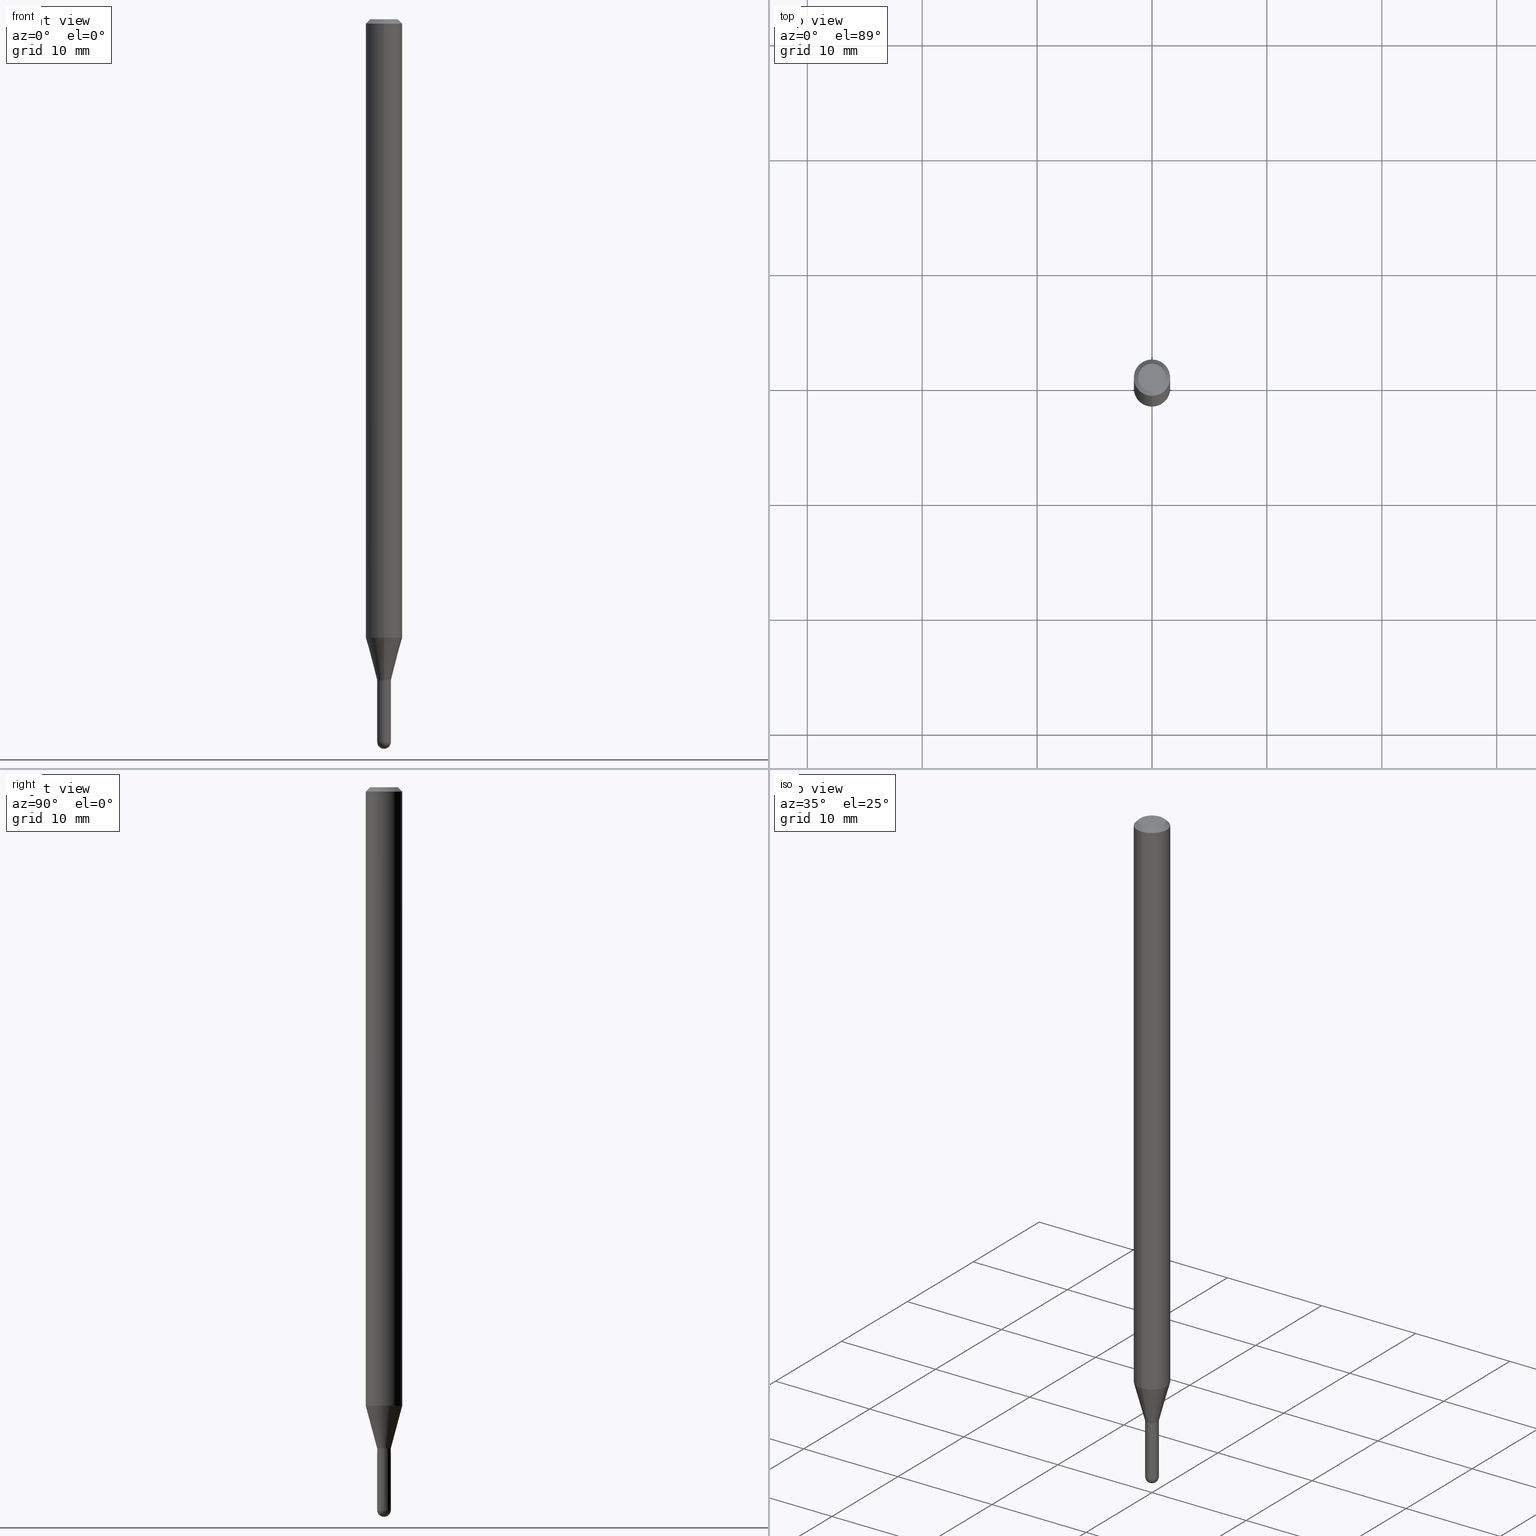
[diagram: canonical four-view strip — front | top / right | iso, engineering-drawing reading convention]
A machine part, canonical four-view strip (front | top / right | iso — engineering-drawing reading convention). The complete STEP part file that produces these views, byte-faithful:
ISO-10303-21;
HEADER;
FILE_DESCRIPTION (( 'STEP AP203' ),
    '1' );
FILE_NAME ('04463.STEP',
    '2024-03-08T19:46:50',
    ( '' ),
    ( '' ),
    'SwSTEP 2.0',
    'SolidWorks 2023',
    '' );
FILE_SCHEMA (( 'CONFIG_CONTROL_DESIGN' ));
ENDSEC;

DATA;
#1 = ORIENTED_EDGE ( 'NONE', *, *, #501, .T. ) ;
#2 = CIRCLE ( 'NONE', #287, 0.02299999999999999961 ) ;
#3 = CIRCLE ( 'NONE', #182, 0.02350000000000000699 ) ;
#4 = CYLINDRICAL_SURFACE ( 'NONE', #506, 0.06250000000000000000 ) ;
#5 = VERTEX_POINT ( 'NONE', #365 ) ;
#6 = DIRECTION ( 'NONE',  ( 6.982962677686265922E-15, 1.000000000000000000, 0.000000000000000000 ) ) ;
#7 = ORIENTED_EDGE ( 'NONE', *, *, #113, .T. ) ;
#8 = EDGE_CURVE ( 'NONE', #510, #41, #323, .T. ) ;
#9 = EDGE_CURVE ( 'NONE', #317, #128, #466, .T. ) ;
#10 = DIRECTION ( 'NONE',  ( -6.982962677686265922E-15, -1.000000000000000000, 0.000000000000000000 ) ) ;
#11 = ORIENTED_EDGE ( 'NONE', *, *, #357, .F. ) ;
#12 = AXIS2_PLACEMENT_3D ( 'NONE', #226, #427, #223 ) ;
#13 = CARTESIAN_POINT ( 'NONE',  ( 6.056203498517492154E-29, -8.646653535645053486E-15, -2.476500000000000590 ) ) ;
#14 = DIRECTION ( 'NONE',  ( -2.445458226452075006E-29, 3.491496489623050583E-15, 1.000000000000000000 ) ) ;
#15 = CARTESIAN_POINT ( 'NONE',  ( 1.669775429036229771E-16, 0.02349999999999992373, -8.205016750614142168E-17 ) ) ;
#16 = CARTESIAN_POINT ( 'NONE',  ( -1.606081415867287287E-16, -0.02300000000000790995, -2.265000000000000124 ) ) ;
#17 = ORIENTED_EDGE ( 'NONE', *, *, #501, .F. ) ;
#18 = AXIS2_PLACEMENT_3D ( 'NONE', #380, #308, #423 ) ;
#19 = PRODUCT_DEFINITION_FORMATION_WITH_SPECIFIED_SOURCE ( 'ANY', '', #215, .NOT_KNOWN. ) ;
#20 = CARTESIAN_POINT ( 'NONE',  ( -4.364351673553912750E-16, -0.06250000000000005551, -0.01499999999999984852 ) ) ;
#21 = EDGE_CURVE ( 'NONE', #399, #393, #216, .T. ) ;
#22 = CARTESIAN_POINT ( 'NONE',  ( 1.634248292248784082E-16, 0.02299999999999208927, -2.265000000000000124 ) ) ;
#23 = CARTESIAN_POINT ( 'NONE',  ( 5.183026483306613636E-29, -7.400052299541085290E-15, -2.119450018504819067 ) ) ;
#24 = CARTESIAN_POINT ( 'NONE',  ( 5.537740153800724885E-29, -7.906493800751397626E-15, -2.264499999999999957 ) ) ;
#25 = CC_DESIGN_PERSON_AND_ORGANIZATION_ASSIGNMENT ( #422, #186, ( #19 ) ) ;
#26 = CONICAL_SURFACE ( 'NONE', #18, 0.02299999999999999961, 0.7853981633969275844 ) ;
#27 = FACE_OUTER_BOUND ( 'NONE', #408, .T. ) ;
#28 = APPROVAL_PERSON_ORGANIZATION ( #107, #298, #31 ) ;
#29 = PERSON_AND_ORGANIZATION ( #460, #175 ) ;
#30 = DIRECTION ( 'NONE',  ( -6.982962677686265133E-15, -1.000000000000000000, 0.000000000000000000 ) ) ;
#31 = APPROVAL_ROLE ( '' ) ;
#32 = LINE ( 'NONE', #465, #59 ) ;
#33 = CARTESIAN_POINT ( 'NONE',  ( 5.538962882913950736E-29, -7.908239548996208593E-15, -2.265000000000000124 ) ) ;
#34 = CONICAL_SURFACE ( 'NONE', #351, 0.06250000000000000000, 0.7853981633974483900 ) ;
#35 = CIRCLE ( 'NONE', #374, 0.02349999999999965311 ) ;
#36 = VECTOR ( 'NONE', #375, 39.37007874015748143 ) ;
#37 = FACE_OUTER_BOUND ( 'NONE', #84, .T. ) ;
#38 = DIRECTION ( 'NONE',  ( -1.807323732225379443E-15, -0.2588190451025252359, 0.9659258262890670910 ) ) ;
#39 = VERTEX_POINT ( 'NONE', #131 ) ;
#40 = DIRECTION ( 'NONE',  ( 2.445458226452074726E-29, -3.491496489623050583E-15, -1.000000000000000000 ) ) ;
#41 = VERTEX_POINT ( 'NONE', #283 ) ;
#42 = VECTOR ( 'NONE', #167, 39.37007874015748143 ) ;
#43 = DIRECTION ( 'NONE',  ( 6.982962677686265922E-15, 1.000000000000000000, -3.491496489623050583E-15 ) ) ;
#44 = EDGE_LOOP ( 'NONE', ( #120, #474, #353, #485 ) ) ;
#45 = CARTESIAN_POINT ( 'NONE',  ( 6.054193857737919554E-29, -8.649531455623046771E-15, -2.476500000000000146 ) ) ;
#46 = ORIENTED_EDGE ( 'NONE', *, *, #453, .F. ) ;
#47 = ORIENTED_EDGE ( 'NONE', *, *, #435, .T. ) ;
#48 = CIRCLE ( 'NONE', #297, 0.06250000000000000000 ) ;
#49 = AXIS2_PLACEMENT_3D ( 'NONE', #55, #210, #213 ) ;
#50 = DIRECTION ( 'NONE',  ( -6.982962677686265133E-15, -1.000000000000000000, 0.000000000000000000 ) ) ;
#51 = CARTESIAN_POINT ( 'NONE',  ( -1.606081415867287287E-16, -0.02300000000000790995, -2.265000000000000124 ) ) ;
#52 = LENGTH_MEASURE_WITH_UNIT ( LENGTH_MEASURE( 0.02539999999999999897 ), #130 );
#53 = DIRECTION ( 'NONE',  ( -2.445458226452075287E-29, 3.491496489623050583E-15, 1.000000000000000000 ) ) ;
#54 = APPLICATION_CONTEXT ( 'configuration controlled 3d designs of mechanical parts and assemblies' ) ;
#55 = CARTESIAN_POINT ( 'NONE',  ( 0.000000000000000000, 0.000000000000000000, 0.000000000000000000 ) ) ;
#56 = CC_DESIGN_PERSON_AND_ORGANIZATION_ASSIGNMENT ( #282, #169, ( #215 ) ) ;
#57 = DIRECTION ( 'NONE',  ( -7.105427357601001070E-15, -1.000000000000000000, 0.000000000000000000 ) ) ;
#58 = VECTOR ( 'NONE', #490, 39.37007874015748143 ) ;
#59 = VECTOR ( 'NONE', #187, 39.37007874015748143 ) ;
#60 = APPROVAL_ROLE ( '' ) ;
#61 = CARTESIAN_POINT ( 'NONE',  ( 6.056203498517492154E-29, -8.646653535645053486E-15, -2.476500000000000590 ) ) ;
#62 = APPROVAL_STATUS ( 'not_yet_approved' ) ;
#63 = DIRECTION ( 'NONE',  ( 2.445458226452075287E-29, -3.491496489623050583E-15, -1.000000000000000000 ) ) ;
#64 = APPROVAL_STATUS ( 'not_yet_approved' ) ;
#65 = DIRECTION ( 'NONE',  ( -2.445458226452075287E-29, 3.491496489623050583E-15, 1.000000000000000000 ) ) ;
#66 = SHAPE_DEFINITION_REPRESENTATION ( #406, #180 ) ;
#67 = CYLINDRICAL_SURFACE ( 'NONE', #181, 0.02349999999999992373 ) ;
#68 = CC_DESIGN_APPROVAL ( #298, ( #104 ) ) ;
#69 = APPROVAL_ROLE ( '' ) ;
#70 = FACE_OUTER_BOUND ( 'NONE', #255, .T. ) ;
#71 = DIRECTION ( 'NONE',  ( -6.982962677686265922E-15, -1.000000000000000000, 0.000000000000000000 ) ) ;
#72 = CARTESIAN_POINT ( 'NONE',  ( 5.538962882913950736E-29, -7.908239548996208593E-15, -2.265000000000000124 ) ) ;
#73 = CIRCLE ( 'NONE', #95, 0.02350000000000000699 ) ;
#74 = EDGE_CURVE ( 'NONE', #471, #356, #246, .T. ) ;
#75 = EDGE_CURVE ( 'NONE', #128, #317, #481, .T. ) ;
#76 = CARTESIAN_POINT ( 'NONE',  ( -1.640996229255732643E-16, -0.02350000000000810815, -2.265000000000000124 ) ) ;
#77 = ORIENTED_EDGE ( 'NONE', *, *, #118, .T. ) ;
#78 = ADVANCED_FACE ( 'NONE', ( #366 ), #34, .T. ) ;
#79 = FACE_OUTER_BOUND ( 'NONE', #160, .T. ) ;
#80 = EDGE_LOOP ( 'NONE', ( #236, #17 ) ) ;
#81 = EDGE_CURVE ( 'NONE', #5, #399, #211, .T. ) ;
#82 = PLANE ( 'NONE',  #247 ) ;
#83 = EDGE_CURVE ( 'NONE', #510, #176, #173, .T. ) ;
#84 = EDGE_LOOP ( 'NONE', ( #411, #47, #94, #419 ) ) ;
#85 = AXIS2_PLACEMENT_3D ( 'NONE', #469, #459, #428 ) ;
#86 = CIRCLE ( 'NONE', #96, 0.02350000000000000352 ) ;
#87 = CC_DESIGN_APPROVAL ( #257, ( #237 ) ) ;
#88 = EDGE_CURVE ( 'NONE', #401, #162, #124, .T. ) ;
#89 = DIRECTION ( 'NONE',  ( -2.445458226452075287E-29, 3.491496489623050583E-15, 1.000000000000000000 ) ) ;
#90 = VERTEX_POINT ( 'NONE', #20 ) ;
#91 = CARTESIAN_POINT ( 'NONE',  ( 5.538962882913951857E-29, -7.908239548996210171E-15, -2.265000000000000124 ) ) ;
#92 = ORIENTED_EDGE ( 'NONE', *, *, #74, .F. ) ;
#93 = LINE ( 'NONE', #172, #126 ) ;
#94 = ORIENTED_EDGE ( 'NONE', *, *, #335, .T. ) ;
#95 = AXIS2_PLACEMENT_3D ( 'NONE', #61, #219, #376 ) ;
#96 = AXIS2_PLACEMENT_3D ( 'NONE', #307, #473, #359 ) ;
#97 = COORDINATED_UNIVERSAL_TIME_OFFSET ( 5, 0, .BEHIND. ) ;
#98 = EDGE_LOOP ( 'NONE', ( #270, #410, #477, #99 ) ) ;
#99 = ORIENTED_EDGE ( 'NONE', *, *, #435, .F. ) ;
#100 = CARTESIAN_POINT ( 'NONE',  ( 6.054193857737919554E-29, -8.649531455623046771E-15, -2.476500000000000146 ) ) ;
#101 = DIRECTION ( 'NONE',  ( -6.982962677686265133E-15, -1.000000000000000000, 0.000000000000000000 ) ) ;
#102 = CONICAL_SURFACE ( 'NONE', #296, 0.02299999999999999961, 0.7853981633969275844 ) ;
#103 = AXIS2_PLACEMENT_3D ( 'NONE', #45, #161, #316 ) ;
#104 = SECURITY_CLASSIFICATION ( '', '', #184 ) ;
#105 = ORIENTED_EDGE ( 'NONE', *, *, #354, .T. ) ;
#106 = DIRECTION ( 'NONE',  ( -2.445458226452075287E-29, 3.491496489623050583E-15, 1.000000000000000000 ) ) ;
#107 = PERSON_AND_ORGANIZATION ( #460, #175 ) ;
#108 = CARTESIAN_POINT ( 'NONE',  ( 3.668187339678129272E-31, -5.237244734434598234E-17, -0.01500000000000006710 ) ) ;
#109 = CALENDAR_DATE ( 2024, 8, 3 ) ;
#110 = DIRECTION ( 'NONE',  ( -2.445458226452075287E-29, 3.491496489623050583E-15, 1.000000000000000000 ) ) ;
#111 = CARTESIAN_POINT ( 'NONE',  ( -4.364351673553916201E-16, -0.06250000000000000000, 2.182185306014406615E-16 ) ) ;
#112 = ADVANCED_FACE ( 'NONE', ( #138 ), #102, .T. ) ;
#113 = EDGE_CURVE ( 'NONE', #5, #212, #73, .T. ) ;
#114 = DIRECTION ( 'NONE',  ( -6.982962677686265922E-15, -1.000000000000000000, 3.491496489623050583E-15 ) ) ;
#115 = AXIS2_PLACEMENT_3D ( 'NONE', #133, #496, #487 ) ;
#116 = VECTOR ( 'NONE', #504, 39.37007874015748143 ) ;
#117 = ORIENTED_EDGE ( 'NONE', *, *, #507, .F. ) ;
#118 = EDGE_CURVE ( 'NONE', #197, #176, #362, .T. ) ;
#119 = DIRECTION ( 'NONE',  ( -6.982962677686265922E-15, -1.000000000000000000, 0.000000000000000000 ) ) ;
#120 = ORIENTED_EDGE ( 'NONE', *, *, #8, .F. ) ;
#121 = DIRECTION ( 'NONE',  ( -1.000000000000000000, 6.982962677686265922E-15, -4.883557194083112901E-29 ) ) ;
#122 = ORIENTED_EDGE ( 'NONE', *, *, #275, .F. ) ;
#123 = CARTESIAN_POINT ( 'NONE',  ( 5.183026483306613636E-29, -7.400052299541085290E-15, -2.119450018504819067 ) ) ;
#124 = CIRCLE ( 'NONE', #318, 0.02349999999999995495 ) ;
#125 = ORIENTED_EDGE ( 'NONE', *, *, #357, .T. ) ;
#126 = VECTOR ( 'NONE', #454, 39.37007874015748143 ) ;
#127 = DIRECTION ( 'NONE',  ( -2.445458226452075287E-29, 3.491496489623050583E-15, 1.000000000000000000 ) ) ;
#128 = VERTEX_POINT ( 'NONE', #148 ) ;
#129 = ADVANCED_FACE ( 'NONE', ( #27 ), #285, .T. ) ;
#130 =( LENGTH_UNIT ( ) NAMED_UNIT ( * ) SI_UNIT ( $, .METRE. ) );
#131 = CARTESIAN_POINT ( 'NONE',  ( -0.02350000000000000699, -8.110451841158766012E-15, -2.476500000000000590 ) ) ;
#132 = PERSON_AND_ORGANIZATION ( #460, #175 ) ;
#133 = CARTESIAN_POINT ( 'NONE',  ( 5.538986846009334661E-29, -7.908205232479725133E-15, -2.265000000000000124 ) ) ;
#134 = EDGE_CURVE ( 'NONE', #41, #356, #337, .T. ) ;
#135 = ORIENTED_EDGE ( 'NONE', *, *, #88, .F. ) ;
#136 =( NAMED_UNIT ( * ) PLANE_ANGLE_UNIT ( ) SI_UNIT ( $, .RADIAN. ) );
#137 = CARTESIAN_POINT ( 'NONE',  ( 0.02350000000000000352, -1.640996229256272766E-16, 1.145901542312045115E-30 ) ) ;
#138 = FACE_OUTER_BOUND ( 'NONE', #416, .T. ) ;
#139 = ADVANCED_FACE ( 'NONE', ( #70 ), #26, .T. ) ;
#140 = ADVANCED_FACE ( 'NONE', ( #301 ), #174, .T. ) ;
#141 = EDGE_LOOP ( 'NONE', ( #497, #438, #289, #193 ) ) ;
#142 = AXIS2_PLACEMENT_3D ( 'NONE', #23, #266, #345 ) ;
#143 = VECTOR ( 'NONE', #238, 39.37007874015748143 ) ;
#144 = CARTESIAN_POINT ( 'NONE',  ( 1.640996229256876491E-16, 0.02349999999999133338, -2.476500000000000590 ) ) ;
#145 = DATE_AND_TIME ( #220, #338 ) ;
#146 = FACE_OUTER_BOUND ( 'NONE', #325, .T. ) ;
#147 = COORDINATED_UNIVERSAL_TIME_OFFSET ( 5, 0, .BEHIND. ) ;
#148 = CARTESIAN_POINT ( 'NONE',  ( -3.773273898774340269E-16, -0.04749999999999999362, 1.003465688667441615E-16 ) ) ;
#149 = EDGE_CURVE ( 'NONE', #212, #39, #371, .T. ) ;
#150 = CARTESIAN_POINT ( 'NONE',  ( -1.640996229255700102E-16, -0.02350000000000763978, -2.264499999999999957 ) ) ;
#151 = APPLICATION_CONTEXT ( 'configuration controlled 3d designs of mechanical parts and assemblies' ) ;
#152 = DIRECTION ( 'NONE',  ( -2.445468806185136597E-29, 3.491481338843145583E-15, 1.000000000000000000 ) ) ;
#153 = DIRECTION ( 'NONE',  ( 1.000000000000000000, -6.982962677686265922E-15, 4.876176775795935793E-29 ) ) ;
#154 = VERTEX_POINT ( 'NONE', #221 ) ;
#155 = MANIFOLD_SOLID_BREP ( 'Body-Move/Copy2[2]', #188 ) ;
#156 = DIRECTION ( 'NONE',  ( -2.445458226452075287E-29, 3.491496489623050583E-15, 1.000000000000000000 ) ) ;
#157 = CIRCLE ( 'NONE', #103, 0.02349999999999995495 ) ;
#158 = EDGE_LOOP ( 'NONE', ( #434, #457 ) ) ;
#159 = CARTESIAN_POINT ( 'NONE',  ( 0.000000000000000000, 0.000000000000000000, 0.000000000000000000 ) ) ;
#160 = EDGE_LOOP ( 'NONE', ( #480, #234, #441, #250, #7 ) ) ;
#161 = DIRECTION ( 'NONE',  ( 1.000000000000000000, -6.982962677686265922E-15, 4.883557194083112340E-29 ) ) ;
#162 = VERTEX_POINT ( 'NONE', #183 ) ;
#163 = MANIFOLD_SOLID_BREP ( 'Body-Move/Copy2[1]', #267 ) ;
#164 = CARTESIAN_POINT ( 'NONE',  ( -0.02350000000000000352, -8.110451841158766012E-15, -2.265000000000000124 ) ) ;
#165 = EDGE_LOOP ( 'NONE', ( #309, #125 ) ) ;
#166 = AXIS2_PLACEMENT_3D ( 'NONE', #437, #355, #153 ) ;
#167 = DIRECTION ( 'NONE',  ( 4.937700262164548042E-15, 0.7071067811865451302, -0.7071067811865499042 ) ) ;
#168 = ORIENTED_EDGE ( 'NONE', *, *, #113, .F. ) ;
#169 = PERSON_AND_ORGANIZATION_ROLE ( 'design_owner' ) ;
#170 = DIRECTION ( 'NONE',  ( 6.982962677686265922E-15, 1.000000000000000000, -3.483106191921935554E-15 ) ) ;
#171 = ORIENTED_EDGE ( 'NONE', *, *, #409, .F. ) ;
#172 = CARTESIAN_POINT ( 'NONE',  ( 4.440892098500625669E-16, 0.06250000000000000000, -2.182185306014406615E-16 ) ) ;
#173 = LINE ( 'NONE', #251, #195 ) ;
#174 = CONICAL_SURFACE ( 'NONE', #396, 0.02350000000000019781, 0.2617993877991575680 ) ;
#175 = ORGANIZATION ( 'UNSPECIFIED', 'UNSPECIFIED', '' ) ;
#176 = VERTEX_POINT ( 'NONE', #185 ) ;
#177 = DIRECTION ( 'NONE',  ( 5.024295867785445738E-15, 0.7071067811861817543, 0.7071067811869132802 ) ) ;
#178 = ORIENTED_EDGE ( 'NONE', *, *, #436, .T. ) ;
#179 = DIRECTION ( 'NONE',  ( 1.000000000000000000, -6.982962677686227268E-15, 0.000000000000000000 ) ) ;
#180 = ADVANCED_BREP_SHAPE_REPRESENTATION ( '04463', ( #163, #155, #49 ), #417 ) ;
#181 = AXIS2_PLACEMENT_3D ( 'NONE', #341, #508, #383 ) ;
#182 = AXIS2_PLACEMENT_3D ( 'NONE', #13, #407, #243 ) ;
#183 = CARTESIAN_POINT ( 'NONE',  ( -1.669775429035628264E-16, -0.02350000000000862857, -2.476500000000000590 ) ) ;
#184 = SECURITY_CLASSIFICATION_LEVEL ( 'unclassified' ) ;
#185 = CARTESIAN_POINT ( 'NONE',  ( 4.440892098501141880E-16, 0.06249999999999258232, -2.119450018504819511 ) ) ;
#186 = PERSON_AND_ORGANIZATION_ROLE ( 'design_supplier' ) ;
#187 = DIRECTION ( 'NONE',  ( -2.445468806185136877E-29, 3.491481338843145188E-15, 1.000000000000000000 ) ) ;
#188 = CLOSED_SHELL ( 'NONE', ( #478, #112, #78, #413, #140, #442, #447, #129, #385, #300, #139, #330 ) ) ;
#189 = CARTESIAN_POINT ( 'NONE',  ( 5.538962882913950736E-29, -7.908239548996208593E-15, -2.265000000000000124 ) ) ;
#190 = EDGE_CURVE ( 'NONE', #154, #90, #48, .T. ) ;
#191 = CARTESIAN_POINT ( 'NONE',  ( 0.000000000000000000, 0.000000000000000000, 0.000000000000000000 ) ) ;
#192 = FACE_OUTER_BOUND ( 'NONE', #203, .T. ) ;
#193 = ORIENTED_EDGE ( 'NONE', *, *, #511, .F. ) ;
#194 = CARTESIAN_POINT ( 'NONE',  ( 6.112667195073056873E-29, -8.730142307096863163E-15, -2.500000000000000000 ) ) ;
#195 = VECTOR ( 'NONE', #291, 39.37007874015748854 ) ;
#196 = AXIS2_PLACEMENT_3D ( 'NONE', #390, #156, #119 ) ;
#197 = VERTEX_POINT ( 'NONE', #500 ) ;
#198 = CC_DESIGN_APPROVAL ( #358, ( #19 ) ) ;
#199 = CARTESIAN_POINT ( 'NONE',  ( 6.054193857737919554E-29, -8.649531455623046771E-15, -2.476500000000000146 ) ) ;
#200 = DIMENSIONAL_EXPONENTS ( 1.000000000000000000, 0.000000000000000000, 0.000000000000000000, 0.000000000000000000, 0.000000000000000000, 0.000000000000000000, 0.000000000000000000 ) ;
#201 = EDGE_LOOP ( 'NONE', ( #326, #450, #432, #46 ) ) ;
#202 = CARTESIAN_POINT ( 'NONE',  ( 5.538962882913951857E-29, -7.908239548996210171E-15, -2.265000000000000124 ) ) ;
#203 = EDGE_LOOP ( 'NONE', ( #446, #395, #449, #360, #11 ) ) ;
#204 = FACE_OUTER_BOUND ( 'NONE', #141, .T. ) ;
#205 = DIRECTION ( 'NONE',  ( -6.982962677686266711E-15, -1.000000000000000000, 3.491496489623050978E-15 ) ) ;
#206 = CIRCLE ( 'NONE', #239, 0.02350000000000000699 ) ;
#207 = CARTESIAN_POINT ( 'NONE',  ( 3.055333763768974376E-16, 0.02349999999999228401, -2.265000000000000124 ) ) ;
#208 = CARTESIAN_POINT ( 'NONE',  ( 1.601763262944992789E-45, -2.286913245659240307E-31, -6.549951439035072098E-17 ) ) ;
#209 = ORIENTED_EDGE ( 'NONE', *, *, #461, .T. ) ;
#210 = DIRECTION ( 'NONE',  ( 0.000000000000000000, 0.000000000000000000, 1.000000000000000000 ) ) ;
#211 = LINE ( 'NONE', #137, #424 ) ;
#212 = VERTEX_POINT ( 'NONE', #144 ) ;
#213 = DIRECTION ( 'NONE',  ( 1.000000000000000000, 0.000000000000000000, 0.000000000000000000 ) ) ;
#214 = CARTESIAN_POINT ( 'NONE',  ( 3.668187339678129272E-31, -5.237244734434598234E-17, -0.01500000000000006710 ) ) ;
#215 = PRODUCT ( '04463', '04463', '', ( #489 ) ) ;
#216 = CIRCLE ( 'NONE', #115, 0.02350000000000000352 ) ;
#217 = AXIS2_PLACEMENT_3D ( 'NONE', #394, #40, #43 ) ;
#218 = DATE_AND_TIME ( #368, #448 ) ;
#219 = DIRECTION ( 'NONE',  ( -2.445468806185136597E-29, 3.491481338843145583E-15, 1.000000000000000000 ) ) ;
#220 = CALENDAR_DATE ( 2024, 8, 3 ) ;
#221 = CARTESIAN_POINT ( 'NONE',  ( 4.440892098501147796E-16, 0.06249999999999995837, -0.01500000000000028394 ) ) ;
#222 = DATE_AND_TIME ( #382, #306 ) ;
#223 = DIRECTION ( 'NONE',  ( -6.982962677686265133E-15, -1.000000000000000000, 0.000000000000000000 ) ) ;
#224 = VECTOR ( 'NONE', #14, 39.37007874015748143 ) ;
#225 = PRODUCT_RELATED_PRODUCT_CATEGORY ( 'detail', '', ( #215 ) ) ;
#226 = CARTESIAN_POINT ( 'NONE',  ( 5.537740153800724885E-29, -7.906493800751397626E-15, -2.264499999999999957 ) ) ;
#227 = APPROVAL_DATE_TIME ( #218, #257 ) ;
#228 = FACE_OUTER_BOUND ( 'NONE', #80, .T. ) ;
#229 = CARTESIAN_POINT ( 'NONE',  ( 3.840629472727447874E-16, 0.04749999999999999362, -2.313455976474456035E-16 ) ) ;
#230 = CC_DESIGN_PERSON_AND_ORGANIZATION_ASSIGNMENT ( #294, #261, ( #237 ) ) ;
#231 = AXIS2_PLACEMENT_3D ( 'NONE', #72, #89, #10 ) ;
#232 = DIRECTION ( 'NONE',  ( 2.438088387897960049E-29, -3.491481338843145188E-15, -1.000000000000000000 ) ) ;
#233 = LINE ( 'NONE', #392, #493 ) ;
#234 = ORIENTED_EDGE ( 'NONE', *, *, #346, .T. ) ;
#235 = DIRECTION ( 'NONE',  ( -1.000000000000000000, 6.982962677686265922E-15, -4.876176775795935793E-29 ) ) ;
#236 = ORIENTED_EDGE ( 'NONE', *, *, #436, .F. ) ;
#237 = PRODUCT_DEFINITION ( 'UNKNOWN', '', #19, #402 ) ;
#238 = DIRECTION ( 'NONE',  ( -4.851104656540964275E-15, -0.7071067811865500152, -0.7071067811865450192 ) ) ;
#239 = AXIS2_PLACEMENT_3D ( 'NONE', #443, #445, #290 ) ;
#240 = ORIENTED_EDGE ( 'NONE', *, *, #190, .T. ) ;
#241 = LINE ( 'NONE', #440, #143 ) ;
#242 = ORIENTED_EDGE ( 'NONE', *, *, #409, .T. ) ;
#243 = DIRECTION ( 'NONE',  ( 1.000000000000000000, -6.982962677686227268E-15, 0.000000000000000000 ) ) ;
#244 = ORIENTED_EDGE ( 'NONE', *, *, #476, .T. ) ;
#245 = DIRECTION ( 'NONE',  ( -2.445458226452075287E-29, 3.491496489623050583E-15, 1.000000000000000000 ) ) ;
#246 = LINE ( 'NONE', #51, #58 ) ;
#247 = AXIS2_PLACEMENT_3D ( 'NONE', #479, #232, #235 ) ;
#248 = LOCAL_TIME ( 14, 46, 50.00000000000000000, #458 ) ;
#249 =( NAMED_UNIT ( * ) SI_UNIT ( $, .STERADIAN. ) SOLID_ANGLE_UNIT ( ) );
#250 = ORIENTED_EDGE ( 'NONE', *, *, #81, .F. ) ;
#251 = CARTESIAN_POINT ( 'NONE',  ( 1.669775429036802928E-16, 0.02349999999999228747, -2.265000000000000124 ) ) ;
#252 = APPROVAL_STATUS ( 'not_yet_approved' ) ;
#253 = EDGE_LOOP ( 'NONE', ( #135, #348, #168, #278 ) ) ;
#254 = DATE_TIME_ROLE ( 'classification_date' ) ;
#255 = EDGE_LOOP ( 'NONE', ( #444, #1, #295, #404 ) ) ;
#256 = CARTESIAN_POINT ( 'NONE',  ( 1.652011860642771318E-16, 0.02299999999999209621, -2.265000000000000124 ) ) ;
#257 = APPROVAL ( #252, 'UNSPECIFIED' ) ;
#258 = PERSON_AND_ORGANIZATION ( #460, #175 ) ;
#259 = DIRECTION ( 'NONE',  ( -1.000000000000000000, 6.982962677686265922E-15, -4.883557194083112901E-29 ) ) ;
#260 = CIRCLE ( 'NONE', #320, 0.06250000000000000000 ) ;
#261 = PERSON_AND_ORGANIZATION_ROLE ( 'creator' ) ;
#262 = EDGE_CURVE ( 'NONE', #452, #510, #389, .T. ) ;
#263 = CARTESIAN_POINT ( 'NONE',  ( 3.668187339678129272E-31, -5.237244734434598234E-17, -0.01500000000000006710 ) ) ;
#264 = CC_DESIGN_PERSON_AND_ORGANIZATION_ASSIGNMENT ( #378, #498, ( #104 ) ) ;
#265 = SPHERICAL_SURFACE ( 'NONE', #482, 0.02349999999999995495 ) ;
#266 = DIRECTION ( 'NONE',  ( -2.445458226452075287E-29, 3.491496489623050583E-15, 1.000000000000000000 ) ) ;
#267 = CLOSED_SHELL ( 'NONE', ( #397, #279, #377, #403, #387 ) ) ;
#268 = AXIS2_PLACEMENT_3D ( 'NONE', #91, #486, #50 ) ;
#269 = CYLINDRICAL_SURFACE ( 'NONE', #430, 0.06250000000000000000 ) ;
#270 = ORIENTED_EDGE ( 'NONE', *, *, #83, .F. ) ;
#271 = DIRECTION ( 'NONE',  ( -2.445458226452075287E-29, 3.491496489623050583E-15, 1.000000000000000000 ) ) ;
#272 = ORIENTED_EDGE ( 'NONE', *, *, #463, .T. ) ;
#273 = FACE_OUTER_BOUND ( 'NONE', #158, .T. ) ;
#274 = ORIENTED_EDGE ( 'NONE', *, *, #354, .F. ) ;
#275 = EDGE_CURVE ( 'NONE', #356, #41, #35, .T. ) ;
#276 = CYLINDRICAL_SURFACE ( 'NONE', #166, 0.02350000000000000352 ) ;
#277 = APPROVAL_PERSON_ORGANIZATION ( #258, #358, #69 ) ;
#278 = ORIENTED_EDGE ( 'NONE', *, *, #488, .F. ) ;
#279 = ADVANCED_FACE ( 'NONE', ( #146 ), #265, .T. ) ;
#280 = APPLICATION_PROTOCOL_DEFINITION ( 'international standard', 'config_control_design', 1994, #54 ) ;
#281 = EDGE_LOOP ( 'NONE', ( #293, #242, #105, #333 ) ) ;
#282 = PERSON_AND_ORGANIZATION ( #460, #175 ) ;
#283 = CARTESIAN_POINT ( 'NONE',  ( 1.669775429036758554E-16, 0.02349999999999166644, -2.264499999999999957 ) ) ;
#284 = UNCERTAINTY_MEASURE_WITH_UNIT (LENGTH_MEASURE( 1.000000000000000082E-05 ), #327, 'distance_accuracy_value', 'NONE');
#285 = CONICAL_SURFACE ( 'NONE', #491, 0.06250000000000000000, 0.7853981633974483900 ) ;
#286 = DIRECTION ( 'NONE',  ( -6.982962677686266711E-15, -1.000000000000000000, 3.491496489623050978E-15 ) ) ;
#287 = AXIS2_PLACEMENT_3D ( 'NONE', #202, #319, #484 ) ;
#288 = LOCAL_TIME ( 14, 46, 50.00000000000000000, #147 ) ;
#289 = ORIENTED_EDGE ( 'NONE', *, *, #134, .T. ) ;
#290 = DIRECTION ( 'NONE',  ( 1.000000000000000000, -6.982962677686227268E-15, 0.000000000000000000 ) ) ;
#291 = DIRECTION ( 'NONE',  ( 1.839019923739650408E-15, 0.2588190451025319527, 0.9659258262890650926 ) ) ;
#292 = APPLICATION_PROTOCOL_DEFINITION ( 'international standard', 'config_control_design', 1994, #151 ) ;
#293 = ORIENTED_EDGE ( 'NONE', *, *, #75, .F. ) ;
#294 = PERSON_AND_ORGANIZATION ( #460, #175 ) ;
#295 = ORIENTED_EDGE ( 'NONE', *, *, #74, .T. ) ;
#296 = AXIS2_PLACEMENT_3D ( 'NONE', #332, #455, #101 ) ;
#297 = AXIS2_PLACEMENT_3D ( 'NONE', #303, #65, #502 ) ;
#298 = APPROVAL ( #62, 'UNSPECIFIED' ) ;
#299 = PLANE ( 'NONE',  #85 ) ;
#300 = ADVANCED_FACE ( 'NONE', ( #228 ), #299, .F. ) ;
#301 = FACE_OUTER_BOUND ( 'NONE', #201, .T. ) ;
#302 = COORDINATED_UNIVERSAL_TIME_OFFSET ( 5, 0, .BEHIND. ) ;
#303 = CARTESIAN_POINT ( 'NONE',  ( 3.668187339678129272E-31, -5.237244734434598234E-17, -0.01500000000000006710 ) ) ;
#304 = CIRCLE ( 'NONE', #425, 0.06250000000000000000 ) ;
#305 = APPROVAL_DATE_TIME ( #456, #358 ) ;
#306 = LOCAL_TIME ( 14, 46, 50.00000000000000000, #302 ) ;
#307 = CARTESIAN_POINT ( 'NONE',  ( 5.538986846009334661E-29, -7.908205232479725133E-15, -2.265000000000000124 ) ) ;
#308 = DIRECTION ( 'NONE',  ( -2.445458226452075287E-29, 3.491496489623050583E-15, 1.000000000000000000 ) ) ;
#309 = ORIENTED_EDGE ( 'NONE', *, *, #21, .T. ) ;
#310 = AXIS2_PLACEMENT_3D ( 'NONE', #189, #379, #339 ) ;
#311 = APPROVAL_PERSON_ORGANIZATION ( #132, #257, #60 ) ;
#312 = DIRECTION ( 'NONE',  ( -6.982962677686265922E-15, -1.000000000000000000, 4.370956789862821150E-15 ) ) ;
#313 = ORIENTED_EDGE ( 'NONE', *, *, #149, .F. ) ;
#314 = FACE_OUTER_BOUND ( 'NONE', #253, .T. ) ;
#315 = ORIENTED_EDGE ( 'NONE', *, *, #420, .F. ) ;
#316 = DIRECTION ( 'NONE',  ( 6.982962677686265922E-15, 1.000000000000000000, 0.000000000000000000 ) ) ;
#317 = VERTEX_POINT ( 'NONE', #229 ) ;
#318 = AXIS2_PLACEMENT_3D ( 'NONE', #100, #412, #57 ) ;
#319 = DIRECTION ( 'NONE',  ( -2.445458226452075287E-29, 3.491496489623050583E-15, 1.000000000000000000 ) ) ;
#320 = AXIS2_PLACEMENT_3D ( 'NONE', #108, #386, #505 ) ;
#321 = VERTEX_POINT ( 'NONE', #256 ) ;
#322 = CARTESIAN_POINT ( 'NONE',  ( 0.000000000000000000, 0.000000000000000000, 0.000000000000000000 ) ) ;
#323 = LINE ( 'NONE', #15, #224 ) ;
#324 = LINE ( 'NONE', #451, #42 ) ;
#325 = EDGE_LOOP ( 'NONE', ( #315, #405, #117, #313 ) ) ;
#326 = ORIENTED_EDGE ( 'NONE', *, *, #262, .T. ) ;
#327 =( CONVERSION_BASED_UNIT ( 'INCH', #52 ) LENGTH_UNIT ( ) NAMED_UNIT ( #200 ) );
#328 = CARTESIAN_POINT ( 'NONE',  ( 1.601763262944992789E-45, -2.286913245659240307E-31, -6.549951439035072098E-17 ) ) ;
#329 = CIRCLE ( 'NONE', #268, 0.02299999999999999961 ) ;
#330 = ADVANCED_FACE ( 'NONE', ( #388 ), #67, .F. ) ;
#331 = CARTESIAN_POINT ( 'NONE',  ( -1.640996229256267342E-16, -0.02349999999999992373, 8.205016750614142168E-17 ) ) ;
#332 = CARTESIAN_POINT ( 'NONE',  ( 5.538962882913951857E-29, -7.908239548996210171E-15, -2.265000000000000124 ) ) ;
#333 = ORIENTED_EDGE ( 'NONE', *, *, #463, .F. ) ;
#334 = DATE_TIME_ROLE ( 'creation_date' ) ;
#335 = EDGE_CURVE ( 'NONE', #197, #90, #340, .T. ) ;
#336 = CARTESIAN_POINT ( 'NONE',  ( 6.056203498517492154E-29, -8.646653535645053486E-15, -2.476500000000000590 ) ) ;
#337 = CIRCLE ( 'NONE', #12, 0.02349999999999965311 ) ;
#338 = LOCAL_TIME ( 14, 46, 50.00000000000000000, #384 ) ;
#339 = DIRECTION ( 'NONE',  ( -6.982962677686265922E-15, -1.000000000000000000, 0.000000000000000000 ) ) ;
#340 = LINE ( 'NONE', #111, #116 ) ;
#341 = CARTESIAN_POINT ( 'NONE',  ( 0.000000000000000000, 0.000000000000000000, 0.000000000000000000 ) ) ;
#342 = CC_DESIGN_PERSON_AND_ORGANIZATION_ASSIGNMENT ( #29, #418, ( #19 ) ) ;
#343 = AXIS2_PLACEMENT_3D ( 'NONE', #208, #53, #286 ) ;
#344 = CONICAL_SURFACE ( 'NONE', #196, 0.02350000000000019781, 0.2617993877991575680 ) ;
#345 = DIRECTION ( 'NONE',  ( -6.982962677686265922E-15, -1.000000000000000000, 4.370956789862821150E-15 ) ) ;
#346 = EDGE_CURVE ( 'NONE', #39, #393, #32, .T. ) ;
#347 = DIRECTION ( 'NONE',  ( -2.445468806185136597E-29, 3.491481338843145583E-15, 1.000000000000000000 ) ) ;
#348 = ORIENTED_EDGE ( 'NONE', *, *, #420, .T. ) ;
#349 = CYLINDRICAL_SURFACE ( 'NONE', #381, 0.02350000000000000352 ) ;
#350 = ORIENTED_EDGE ( 'NONE', *, *, #335, .F. ) ;
#351 = AXIS2_PLACEMENT_3D ( 'NONE', #214, #372, #170 ) ;
#352 = SPHERICAL_SURFACE ( 'NONE', #364, 0.02349999999999995495 ) ;
#353 = ORIENTED_EDGE ( 'NONE', *, *, #511, .T. ) ;
#354 = EDGE_CURVE ( 'NONE', #90, #154, #260, .T. ) ;
#355 = DIRECTION ( 'NONE',  ( -2.445468806185136597E-29, 3.491481338843145583E-15, 1.000000000000000000 ) ) ;
#356 = VERTEX_POINT ( 'NONE', #150 ) ;
#357 = EDGE_CURVE ( 'NONE', #393, #399, #86, .T. ) ;
#358 = APPROVAL ( #64, 'UNSPECIFIED' ) ;
#359 = DIRECTION ( 'NONE',  ( 1.000000000000000000, -6.982962677686269866E-15, 0.000000000000000000 ) ) ;
#360 = ORIENTED_EDGE ( 'NONE', *, *, #81, .T. ) ;
#361 = ORIENTED_EDGE ( 'NONE', *, *, #9, .F. ) ;
#362 = CIRCLE ( 'NONE', #142, 0.06250000000000000000 ) ;
#363 = DIRECTION ( 'NONE',  ( -6.982962677686266711E-15, -1.000000000000000000, 3.491496489623050583E-15 ) ) ;
#364 = AXIS2_PLACEMENT_3D ( 'NONE', #199, #121, #6 ) ;
#365 = CARTESIAN_POINT ( 'NONE',  ( 0.02350000000000000699, -8.441529006988016167E-15, -2.476500000000000590 ) ) ;
#366 = FACE_OUTER_BOUND ( 'NONE', #281, .T. ) ;
#367 = EDGE_LOOP ( 'NONE', ( #77, #244, #274, #350 ) ) ;
#368 = CALENDAR_DATE ( 2024, 8, 3 ) ;
#369 = DIRECTION ( 'NONE',  ( -2.445468806185136877E-29, 3.491481338843145188E-15, 1.000000000000000000 ) ) ;
#370 = AXIS2_PLACEMENT_3D ( 'NONE', #328, #494, #205 ) ;
#371 = CIRCLE ( 'NONE', #472, 0.02350000000000000699 ) ;
#372 = DIRECTION ( 'NONE',  ( 2.445458226452075287E-29, -3.491496489623050583E-15, -1.000000000000000000 ) ) ;
#373 = EDGE_CURVE ( 'NONE', #510, #452, #439, .T. ) ;
#374 = AXIS2_PLACEMENT_3D ( 'NONE', #24, #106, #30 ) ;
#375 = DIRECTION ( 'NONE',  ( -2.445458226452075006E-29, 3.491496489623050583E-15, 1.000000000000000000 ) ) ;
#376 = DIRECTION ( 'NONE',  ( 1.000000000000000000, -6.982962677686227268E-15, 0.000000000000000000 ) ) ;
#377 = ADVANCED_FACE ( 'NONE', ( #398 ), #82, .F. ) ;
#378 = PERSON_AND_ORGANIZATION ( #460, #175 ) ;
#379 = DIRECTION ( 'NONE',  ( -2.445458226452075287E-29, 3.491496489623050583E-15, 1.000000000000000000 ) ) ;
#380 = CARTESIAN_POINT ( 'NONE',  ( 5.538962882913951857E-29, -7.908239548996210171E-15, -2.265000000000000124 ) ) ;
#381 = AXIS2_PLACEMENT_3D ( 'NONE', #512, #347, #509 ) ;
#382 = CALENDAR_DATE ( 2024, 8, 3 ) ;
#383 = DIRECTION ( 'NONE',  ( -6.982962677686266711E-15, -1.000000000000000000, 3.491496489623050583E-15 ) ) ;
#384 = COORDINATED_UNIVERSAL_TIME_OFFSET ( 5, 0, .BEHIND. ) ;
#385 = ADVANCED_FACE ( 'NONE', ( #273 ), #433, .F. ) ;
#386 = DIRECTION ( 'NONE',  ( -2.445458226452075287E-29, 3.491496489623050583E-15, 1.000000000000000000 ) ) ;
#387 = ADVANCED_FACE ( 'NONE', ( #192 ), #349, .T. ) ;
#388 = FACE_OUTER_BOUND ( 'NONE', #44, .T. ) ;
#389 = CIRCLE ( 'NONE', #310, 0.02350000000000019781 ) ;
#390 = CARTESIAN_POINT ( 'NONE',  ( 5.538962882913950736E-29, -7.908239548996208593E-15, -2.265000000000000124 ) ) ;
#391 = CC_DESIGN_DATE_AND_TIME_ASSIGNMENT ( #145, #254, ( #104 ) ) ;
#392 = CARTESIAN_POINT ( 'NONE',  ( -1.640996229255732643E-16, -0.02350000000000810815, -2.265000000000000124 ) ) ;
#393 = VERTEX_POINT ( 'NONE', #164 ) ;
#394 = CARTESIAN_POINT ( 'NONE',  ( 3.316907271900976096E-16, 0.04749999999999999362, -1.985958404522702491E-16 ) ) ;
#395 = ORIENTED_EDGE ( 'NONE', *, *, #507, .T. ) ;
#396 = AXIS2_PLACEMENT_3D ( 'NONE', #33, #110, #71 ) ;
#397 = ADVANCED_FACE ( 'NONE', ( #79 ), #276, .T. ) ;
#398 = FACE_OUTER_BOUND ( 'NONE', #165, .T. ) ;
#399 = VERTEX_POINT ( 'NONE', #470 ) ;
#400 = FACE_OUTER_BOUND ( 'NONE', #367, .T. ) ;
#401 = VERTEX_POINT ( 'NONE', #194 ) ;
#402 = DESIGN_CONTEXT ( 'detailed design', #151, 'design' ) ;
#403 = ADVANCED_FACE ( 'NONE', ( #314 ), #352, .T. ) ;
#404 = ORIENTED_EDGE ( 'NONE', *, *, #134, .F. ) ;
#405 = ORIENTED_EDGE ( 'NONE', *, *, #88, .T. ) ;
#406 = PRODUCT_DEFINITION_SHAPE ( 'NONE', 'NONE',  #237 ) ;
#407 = DIRECTION ( 'NONE',  ( -2.445468806185136597E-29, 3.491481338843145583E-15, 1.000000000000000000 ) ) ;
#408 = EDGE_LOOP ( 'NONE', ( #171, #361, #272, #240 ) ) ;
#409 = EDGE_CURVE ( 'NONE', #128, #90, #241, .T. ) ;
#410 = ORIENTED_EDGE ( 'NONE', *, *, #373, .T. ) ;
#411 = ORIENTED_EDGE ( 'NONE', *, *, #476, .F. ) ;
#412 = DIRECTION ( 'NONE',  ( -1.000000000000000000, 7.105427357601001070E-15, -4.926315508542082329E-29 ) ) ;
#413 = ADVANCED_FACE ( 'NONE', ( #400 ), #4, .T. ) ;
#414 = LINE ( 'NONE', #331, #36 ) ;
#415 = CC_DESIGN_DATE_AND_TIME_ASSIGNMENT ( #503, #334, ( #237 ) ) ;
#416 = EDGE_LOOP ( 'NONE', ( #178, #209, #122, #92 ) ) ;
#417 =( GEOMETRIC_REPRESENTATION_CONTEXT ( 3 ) GLOBAL_UNCERTAINTY_ASSIGNED_CONTEXT ( ( #284 ) ) GLOBAL_UNIT_ASSIGNED_CONTEXT ( ( #327, #136, #249 ) ) REPRESENTATION_CONTEXT ( 'NONE', 'WORKASPACE' ) );
#418 = PERSON_AND_ORGANIZATION_ROLE ( 'creator' ) ;
#419 = ORIENTED_EDGE ( 'NONE', *, *, #190, .F. ) ;
#420 = EDGE_CURVE ( 'NONE', #401, #212, #157, .T. ) ;
#421 = CARTESIAN_POINT ( 'NONE',  ( 6.054193857737919554E-29, -8.649531455623046771E-15, -2.476500000000000146 ) ) ;
#422 = PERSON_AND_ORGANIZATION ( #460, #175 ) ;
#423 = DIRECTION ( 'NONE',  ( -6.982962677686265133E-15, -1.000000000000000000, 0.000000000000000000 ) ) ;
#424 = VECTOR ( 'NONE', #369, 39.37007874015748143 ) ;
#425 = AXIS2_PLACEMENT_3D ( 'NONE', #123, #127, #312 ) ;
#426 = CALENDAR_DATE ( 2024, 8, 3 ) ;
#427 = DIRECTION ( 'NONE',  ( -2.445458226452075287E-29, 3.491496489623050583E-15, 1.000000000000000000 ) ) ;
#428 = DIRECTION ( 'NONE',  ( -6.982962677686265922E-15, -1.000000000000000000, 3.491496489623050583E-15 ) ) ;
#429 = FACE_OUTER_BOUND ( 'NONE', #98, .T. ) ;
#430 = AXIS2_PLACEMENT_3D ( 'NONE', #191, #271, #431 ) ;
#431 = DIRECTION ( 'NONE',  ( -6.982962677686265922E-15, -1.000000000000000000, 3.491496489623050583E-15 ) ) ;
#432 = ORIENTED_EDGE ( 'NONE', *, *, #118, .F. ) ;
#433 = PLANE ( 'NONE',  #217 ) ;
#434 = ORIENTED_EDGE ( 'NONE', *, *, #9, .T. ) ;
#435 = EDGE_CURVE ( 'NONE', #176, #197, #304, .T. ) ;
#436 = EDGE_CURVE ( 'NONE', #471, #321, #2, .T. ) ;
#437 = CARTESIAN_POINT ( 'NONE',  ( 0.000000000000000000, 0.000000000000000000, 0.000000000000000000 ) ) ;
#438 = ORIENTED_EDGE ( 'NONE', *, *, #8, .T. ) ;
#439 = CIRCLE ( 'NONE', #231, 0.02350000000000019781 ) ;
#440 = CARTESIAN_POINT ( 'NONE',  ( -4.287811248607203282E-16, -0.06250000000000005551, -0.01499999999999984852 ) ) ;
#441 = ORIENTED_EDGE ( 'NONE', *, *, #21, .F. ) ;
#442 = ADVANCED_FACE ( 'NONE', ( #429 ), #344, .T. ) ;
#443 = CARTESIAN_POINT ( 'NONE',  ( 6.056203498517492154E-29, -8.646653535645053486E-15, -2.476500000000000590 ) ) ;
#444 = ORIENTED_EDGE ( 'NONE', *, *, #461, .F. ) ;
#445 = DIRECTION ( 'NONE',  ( -2.445468806185136597E-29, 3.491481338843145583E-15, 1.000000000000000000 ) ) ;
#446 = ORIENTED_EDGE ( 'NONE', *, *, #346, .F. ) ;
#447 = ADVANCED_FACE ( 'NONE', ( #37 ), #269, .T. ) ;
#448 = LOCAL_TIME ( 14, 46, 50.00000000000000000, #97 ) ;
#449 = ORIENTED_EDGE ( 'NONE', *, *, #488, .T. ) ;
#450 = ORIENTED_EDGE ( 'NONE', *, *, #83, .T. ) ;
#451 = CARTESIAN_POINT ( 'NONE',  ( 4.364351673553919652E-16, 0.06249999999999995143, -0.01500000000000028394 ) ) ;
#452 = VERTEX_POINT ( 'NONE', #76 ) ;
#453 = EDGE_CURVE ( 'NONE', #452, #197, #233, .T. ) ;
#454 = DIRECTION ( 'NONE',  ( -2.445458226452075006E-29, 3.491496489623050583E-15, 1.000000000000000000 ) ) ;
#455 = DIRECTION ( 'NONE',  ( -2.445458226452075287E-29, 3.491496489623050583E-15, 1.000000000000000000 ) ) ;
#456 = DATE_AND_TIME ( #426, #248 ) ;
#457 = ORIENTED_EDGE ( 'NONE', *, *, #75, .T. ) ;
#458 = COORDINATED_UNIVERSAL_TIME_OFFSET ( 5, 0, .BEHIND. ) ;
#459 = DIRECTION ( 'NONE',  ( -2.445458226452074726E-29, 3.491496489623050583E-15, 1.000000000000000000 ) ) ;
#460 = PERSON ( 'UNSPECIFIED', 'UNSPECIFIED', 'UNSPECIFIED', ('UNSPECIFIED'), ('UNSPECIFIED'), ('UNSPECIFIED') ) ;
#461 = EDGE_CURVE ( 'NONE', #321, #41, #492, .T. ) ;
#462 = DIRECTION ( 'NONE',  ( 6.982962677686265922E-15, 1.000000000000000000, -3.483106191921935554E-15 ) ) ;
#463 = EDGE_CURVE ( 'NONE', #317, #154, #324, .T. ) ;
#464 = APPROVAL_DATE_TIME ( #222, #298 ) ;
#465 = CARTESIAN_POINT ( 'NONE',  ( -0.02350000000000000352, 1.669775429036235687E-16, -1.155949746209903035E-30 ) ) ;
#466 = CIRCLE ( 'NONE', #370, 0.04749999999999999362 ) ;
#467 = VECTOR ( 'NONE', #177, 39.37007874015748143 ) ;
#468 = DIRECTION ( 'NONE',  ( 6.982962677686265922E-15, 1.000000000000000000, 0.000000000000000000 ) ) ;
#469 = CARTESIAN_POINT ( 'NONE',  ( 5.538962882913950736E-29, -7.908239548996208593E-15, -2.265000000000000124 ) ) ;
#470 = CARTESIAN_POINT ( 'NONE',  ( 0.02350000000000000352, -8.072304855405352780E-15, -2.265000000000000124 ) ) ;
#471 = VERTEX_POINT ( 'NONE', #16 ) ;
#472 = AXIS2_PLACEMENT_3D ( 'NONE', #336, #152, #179 ) ;
#473 = DIRECTION ( 'NONE',  ( -2.445468806185136597E-29, 3.491481338843145583E-15, 1.000000000000000000 ) ) ;
#474 = ORIENTED_EDGE ( 'NONE', *, *, #262, .F. ) ;
#475 = DIRECTION ( 'NONE',  ( -2.445458226452075287E-29, 3.491496489623050583E-15, 1.000000000000000000 ) ) ;
#476 = EDGE_CURVE ( 'NONE', #176, #154, #93, .T. ) ;
#477 = ORIENTED_EDGE ( 'NONE', *, *, #453, .T. ) ;
#478 = ADVANCED_FACE ( 'NONE', ( #204 ), #495, .F. ) ;
#479 = CARTESIAN_POINT ( 'NONE',  ( 1.640996229256826447E-16, 0.02349999999999209319, -2.265000000000000124 ) ) ;
#480 = ORIENTED_EDGE ( 'NONE', *, *, #149, .T. ) ;
#481 = CIRCLE ( 'NONE', #343, 0.04749999999999999362 ) ;
#482 = AXIS2_PLACEMENT_3D ( 'NONE', #421, #259, #468 ) ;
#483 = CC_DESIGN_SECURITY_CLASSIFICATION ( #104, ( #19 ) ) ;
#484 = DIRECTION ( 'NONE',  ( -6.982962677686265133E-15, -1.000000000000000000, 0.000000000000000000 ) ) ;
#485 = ORIENTED_EDGE ( 'NONE', *, *, #275, .T. ) ;
#486 = DIRECTION ( 'NONE',  ( -2.445458226452075287E-29, 3.491496489623050583E-15, 1.000000000000000000 ) ) ;
#487 = DIRECTION ( 'NONE',  ( 1.000000000000000000, -6.982962677686269866E-15, 0.000000000000000000 ) ) ;
#488 = EDGE_CURVE ( 'NONE', #162, #5, #206, .T. ) ;
#489 = MECHANICAL_CONTEXT ( 'NONE', #54, 'mechanical' ) ;
#490 = DIRECTION ( 'NONE',  ( -4.937700262161976356E-15, -0.7071067811861768693, 0.7071067811869181652 ) ) ;
#491 = AXIS2_PLACEMENT_3D ( 'NONE', #263, #63, #462 ) ;
#492 = LINE ( 'NONE', #22, #467 ) ;
#493 = VECTOR ( 'NONE', #38, 39.37007874015748143 ) ;
#494 = DIRECTION ( 'NONE',  ( -2.445458226452075287E-29, 3.491496489623050583E-15, 1.000000000000000000 ) ) ;
#495 = CYLINDRICAL_SURFACE ( 'NONE', #499, 0.02349999999999992373 ) ;
#496 = DIRECTION ( 'NONE',  ( -2.445468806185136597E-29, 3.491481338843145583E-15, 1.000000000000000000 ) ) ;
#497 = ORIENTED_EDGE ( 'NONE', *, *, #373, .F. ) ;
#498 = PERSON_AND_ORGANIZATION_ROLE ( 'classification_officer' ) ;
#499 = AXIS2_PLACEMENT_3D ( 'NONE', #322, #245, #363 ) ;
#500 = CARTESIAN_POINT ( 'NONE',  ( -4.364351673553400483E-16, -0.06250000000000742462, -2.119450018504819067 ) ) ;
#501 = EDGE_CURVE ( 'NONE', #321, #471, #329, .T. ) ;
#502 = DIRECTION ( 'NONE',  ( -6.982962677686265922E-15, -1.000000000000000000, 3.483106191921935554E-15 ) ) ;
#503 = DATE_AND_TIME ( #109, #288 ) ;
#504 = DIRECTION ( 'NONE',  ( -2.445458226452075006E-29, 3.491496489623050583E-15, 1.000000000000000000 ) ) ;
#505 = DIRECTION ( 'NONE',  ( -6.982962677686265922E-15, -1.000000000000000000, 3.483106191921935554E-15 ) ) ;
#506 = AXIS2_PLACEMENT_3D ( 'NONE', #159, #475, #114 ) ;
#507 = EDGE_CURVE ( 'NONE', #39, #162, #3, .T. ) ;
#508 = DIRECTION ( 'NONE',  ( -2.445458226452075287E-29, 3.491496489623050583E-15, 1.000000000000000000 ) ) ;
#509 = DIRECTION ( 'NONE',  ( 1.000000000000000000, -6.982962677686265922E-15, 4.876176775795935793E-29 ) ) ;
#510 = VERTEX_POINT ( 'NONE', #207 ) ;
#511 = EDGE_CURVE ( 'NONE', #452, #356, #414, .T. ) ;
#512 = CARTESIAN_POINT ( 'NONE',  ( 0.000000000000000000, 0.000000000000000000, 0.000000000000000000 ) ) ;
ENDSEC;
END-ISO-10303-21;
